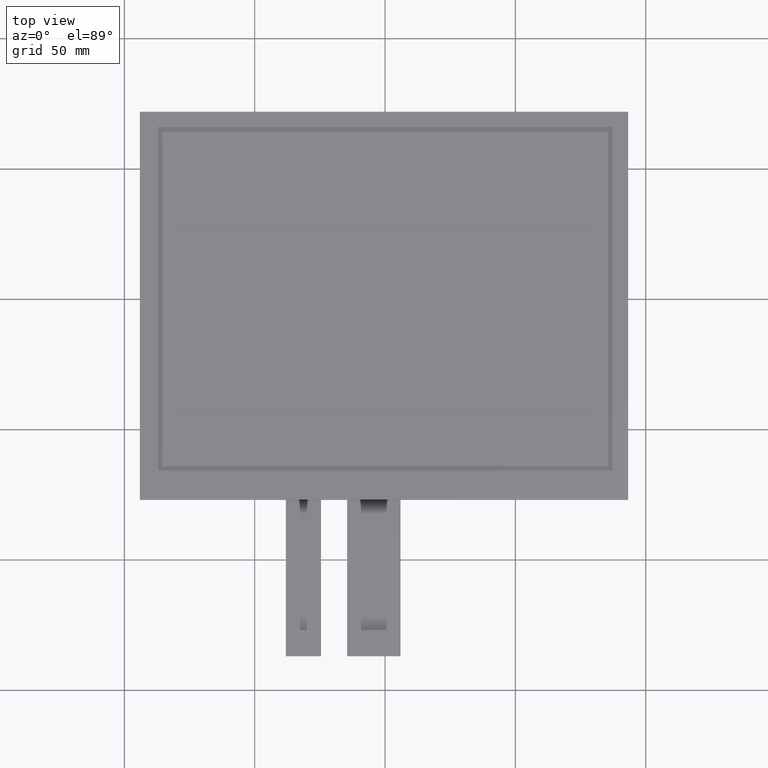
[diagram: clean part render]
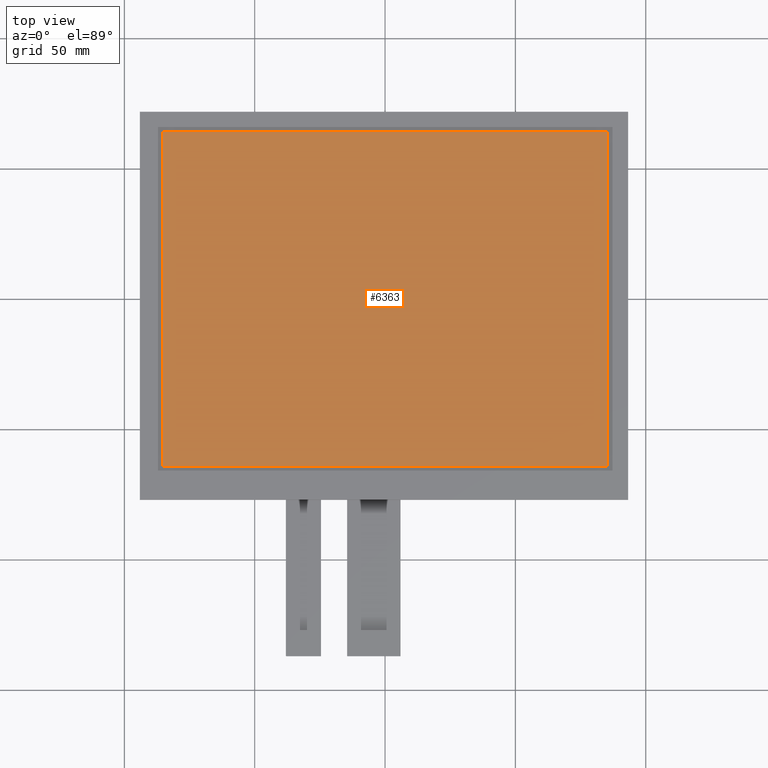
[diagram: same view with one face highlighted and labeled with its STEP entity id]
A machine part, top view. The second image highlights one B-rep face of the part: STEP entity #6363.
In plain terms, the highlighted planar face has unit normal (0, 0, 1).
Its self-contained STEP definition (entity closure, byte-faithful):
#425=PLANE('',#6693);
#727=FACE_OUTER_BOUND('',#1033,.T.);
#1033=EDGE_LOOP('',(#6051,#6052,#6053,#6054));
#1879=LINE('',#9907,#2759);
#1883=LINE('',#9915,#2763);
#1886=LINE('',#9921,#2766);
#1889=LINE('',#9926,#2769);
#2759=VECTOR('',#8131,10.);
#2763=VECTOR('',#8137,10.);
#2766=VECTOR('',#8142,10.);
#2769=VECTOR('',#8147,10.);
#3371=VERTEX_POINT('',#9905);
#3372=VERTEX_POINT('',#9906);
#3375=VERTEX_POINT('',#9914);
#3377=VERTEX_POINT('',#9920);
#4247=EDGE_CURVE('',#3371,#3372,#1879,.T.);
#4251=EDGE_CURVE('',#3375,#3371,#1883,.T.);
#4254=EDGE_CURVE('',#3377,#3375,#1886,.T.);
#4257=EDGE_CURVE('',#3372,#3377,#1889,.T.);
#6051=ORIENTED_EDGE('',*,*,#4247,.T.);
#6052=ORIENTED_EDGE('',*,*,#4257,.T.);
#6053=ORIENTED_EDGE('',*,*,#4254,.T.);
#6054=ORIENTED_EDGE('',*,*,#4251,.T.);
#6363=ADVANCED_FACE('',(#727),#425,.T.);
#6693=AXIS2_PLACEMENT_3D('',#9978,#8193,#8194);
#8131=DIRECTION('',(1.,0.,0.));
#8137=DIRECTION('',(1.38561375928257E-16,-1.,0.));
#8142=DIRECTION('',(-1.,0.,0.));
#8147=DIRECTION('',(1.38561375928257E-16,1.,0.));
#8193=DIRECTION('center_axis',(0.,0.,1.));
#8194=DIRECTION('ref_axis',(1.,0.,0.));
#9905=CARTESIAN_POINT('',(-85.45,-64.1,0.));
#9906=CARTESIAN_POINT('',(85.45,-64.1,0.));
#9907=CARTESIAN_POINT('',(-42.925,-64.1,0.));
#9914=CARTESIAN_POINT('',(-85.45,64.1,0.));
#9915=CARTESIAN_POINT('',(-85.45,30.775,0.));
#9920=CARTESIAN_POINT('',(85.45,64.1,0.));
#9921=CARTESIAN_POINT('',(42.525,64.1,0.));
#9926=CARTESIAN_POINT('',(85.45,-33.325,0.));
#9978=CARTESIAN_POINT('Origin',(-0.400000000000009,-2.54999999999999,0.));